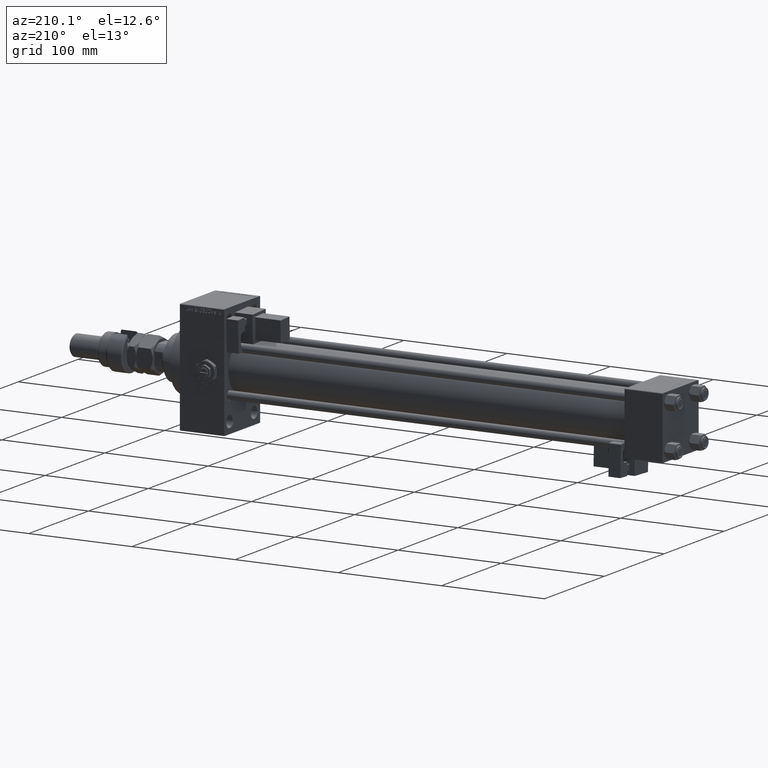
[diagram: clean part render]
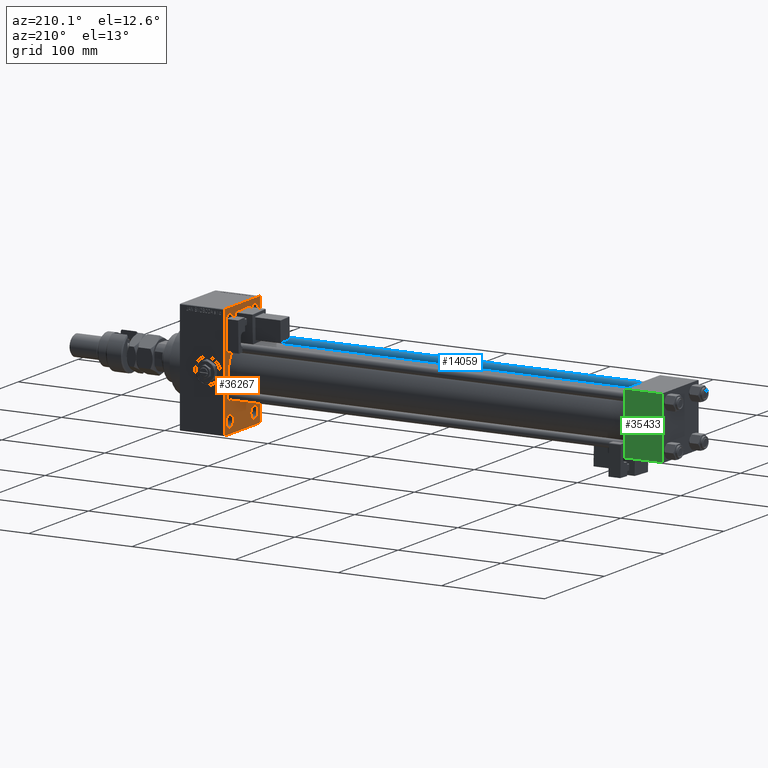
[diagram: same view with three faces highlighted in distinct colors, each labeled with its STEP entity id]
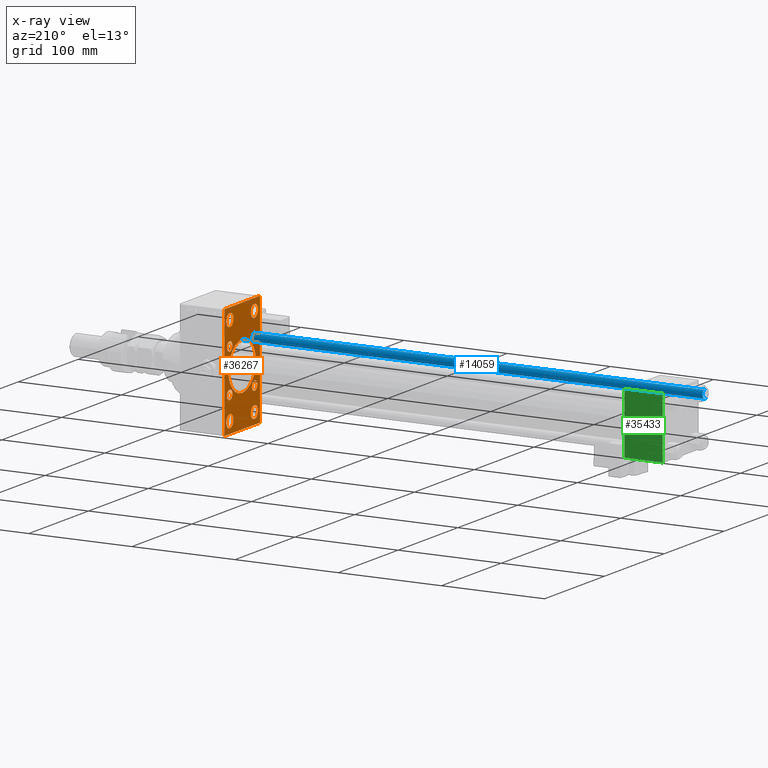
[diagram: x-ray of the same camera — body ghosted, the three highlighted faces saturated]
A machine part, auxiliary view with three faces highlighted in distinct colors.
The next image is the same camera in x-ray (body ghosted, the three faces saturated) — at least one of them is partly hidden behind the body in this view.
Their STEP definitions:

[orange] entity #36267 — the highlighted planar face has unit normal (-1, 0, 0).
#74 = EDGE_CURVE ( 'NONE', #5263, #49610, #17939, .T. ) ;
#223 = EDGE_CURVE ( 'NONE', #26755, #48672, #45046, .T. ) ;
#347 = CIRCLE ( 'NONE', #33502, 23.00000000000000000 ) ;
#788 = ORIENTED_EDGE ( 'NONE', *, *, #45162, .T. ) ;
#865 = CARTESIAN_POINT ( 'NONE',  ( 425.0000000000000000, 20.50000000000000000, 43.50000000000000000 ) ) ;
#1104 = DIRECTION ( 'NONE',  ( -0.000000000000000000, 0.000000000000000000, 1.000000000000000000 ) ) ;
#1119 = VERTEX_POINT ( 'NONE', #9525 ) ;
#1373 = PLANE ( 'NONE',  #25801 ) ;
#1623 = CARTESIAN_POINT ( 'NONE',  ( 425.0000000000000000, -20.84999999999999076, -16.34999999999999787 ) ) ;
#1714 = DIRECTION ( 'NONE',  ( 1.000000000000000000, -0.000000000000000000, 0.000000000000000000 ) ) ;
#2031 = CARTESIAN_POINT ( 'NONE',  ( 425.0000000000000000, 29.99999999999999645, -54.49999999999999289 ) ) ;
#2433 = CARTESIAN_POINT ( 'NONE',  ( 425.0000000000000000, 29.50000000000004974, 54.49999999999999289 ) ) ;
#2756 = ORIENTED_EDGE ( 'NONE', *, *, #20898, .T. ) ;
#2877 = ORIENTED_EDGE ( 'NONE', *, *, #3220, .T. ) ;
#3220 = EDGE_CURVE ( 'NONE', #3223, #41674, #43442, .T. ) ;
#3223 = VERTEX_POINT ( 'NONE', #9857 ) ;
#3252 = ORIENTED_EDGE ( 'NONE', *, *, #31828, .T. ) ;
#3344 = DIRECTION ( 'NONE',  ( 1.000000000000000000, -0.000000000000000000, 0.000000000000000000 ) ) ;
#3407 = AXIS2_PLACEMENT_3D ( 'NONE', #28477, #3344, #23568 ) ;
#3410 = CARTESIAN_POINT ( 'NONE',  ( 425.0000000000000000, -20.84999999999999076, 25.35000000000001208 ) ) ;
#3424 = DIRECTION ( 'NONE',  ( 1.000000000000000000, -0.000000000000000000, 0.000000000000000000 ) ) ;
#3541 = EDGE_CURVE ( 'NONE', #13199, #46855, #19952, .T. ) ;
#3666 = LINE ( 'NONE', #49332, #36600 ) ;
#3700 = CARTESIAN_POINT ( 'NONE',  ( 425.0000000000000000, 20.50000000000000000, -43.50000000000000000 ) ) ;
#3876 = VERTEX_POINT ( 'NONE', #30235 ) ;
#4008 = CIRCLE ( 'NONE', #16078, 23.00000000000000000 ) ;
#4312 = ORIENTED_EDGE ( 'NONE', *, *, #32452, .T. ) ;
#4397 = FACE_BOUND ( 'NONE', #32550, .T. ) ;
#4667 = CARTESIAN_POINT ( 'NONE',  ( 425.0000000000000000, 41.99999999999996447, -41.99999999999996447 ) ) ;
#4721 = CARTESIAN_POINT ( 'NONE',  ( 425.0000000000000000, 20.84999999999999787, -20.85000000000000142 ) ) ;
#4849 = CARTESIAN_POINT ( 'NONE',  ( 425.0000000000000000, -20.84999999999999076, -20.85000000000000497 ) ) ;
#5263 = VERTEX_POINT ( 'NONE', #51125 ) ;
#5336 = DIRECTION ( 'NONE',  ( 1.000000000000000000, 0.000000000000000000, 0.000000000000000000 ) ) ;
#6245 = CARTESIAN_POINT ( 'NONE',  ( 425.0000000000000000, -2.602085213965210642E-15, 0.000000000000000000 ) ) ;
#6497 = ORIENTED_EDGE ( 'NONE', *, *, #47106, .T. ) ;
#6633 = CARTESIAN_POINT ( 'NONE',  ( 425.0000000000000000, 20.84999999999999787, 20.85000000000000142 ) ) ;
#6778 = DIRECTION ( 'NONE',  ( 1.000000000000000000, -0.000000000000000000, 0.000000000000000000 ) ) ;
#7441 = VERTEX_POINT ( 'NONE', #19532 ) ;
#7737 = VERTEX_POINT ( 'NONE', #49221 ) ;
#9024 = CARTESIAN_POINT ( 'NONE',  ( 425.0000000000000000, 0.000000000000000000, 0.000000000000000000 ) ) ;
#9525 = CARTESIAN_POINT ( 'NONE',  ( 425.0000000000000000, -30.00000000000000000, -53.99999999999998579 ) ) ;
#9857 = CARTESIAN_POINT ( 'NONE',  ( 425.0000000000000000, 20.50000000000000000, 49.49999999999995026 ) ) ;
#9991 = EDGE_CURVE ( 'NONE', #53456, #1119, #3666, .T. ) ;
#10041 = DIRECTION ( 'NONE',  ( 0.000000000000000000, 0.000000000000000000, 1.000000000000000000 ) ) ;
#10232 = DIRECTION ( 'NONE',  ( 0.000000000000000000, 0.000000000000000000, -1.000000000000000000 ) ) ;
#10314 = DIRECTION ( 'NONE',  ( 0.000000000000000000, -0.7071067811864960584, 0.7071067811865990871 ) ) ;
#10648 = CARTESIAN_POINT ( 'NONE',  ( 425.0000000000000000, -20.50000000000000000, -49.49999999999995026 ) ) ;
#11386 = CIRCLE ( 'NONE', #49829, 4.500000000000007105 ) ;
#11639 = ORIENTED_EDGE ( 'NONE', *, *, #32584, .T. ) ;
#11796 = DIRECTION ( 'NONE',  ( 1.000000000000000000, -0.000000000000000000, 0.000000000000000000 ) ) ;
#11988 = DIRECTION ( 'NONE',  ( 0.000000000000000000, -1.000000000000000000, 1.156482317317871478E-16 ) ) ;
#12283 = DIRECTION ( 'NONE',  ( 0.000000000000000000, 0.000000000000000000, 1.000000000000000000 ) ) ;
#12314 = VECTOR ( 'NONE', #29716, 1000.000000000000000 ) ;
#12563 = CARTESIAN_POINT ( 'NONE',  ( 425.0000000000000000, 20.84999999999999787, -20.85000000000000142 ) ) ;
#12658 = DIRECTION ( 'NONE',  ( 0.000000000000000000, 0.000000000000000000, 1.000000000000000000 ) ) ;
#12876 = VECTOR ( 'NONE', #29238, 1000.000000000000000 ) ;
#13050 = CARTESIAN_POINT ( 'NONE',  ( 425.0000000000000000, 29.99999999999999645, 54.49999999999999289 ) ) ;
#13199 = VERTEX_POINT ( 'NONE', #2433 ) ;
#13547 = EDGE_CURVE ( 'NONE', #46855, #49600, #33841, .T. ) ;
#13813 = AXIS2_PLACEMENT_3D ( 'NONE', #47007, #46210, #38808 ) ;
#13891 = ORIENTED_EDGE ( 'NONE', *, *, #52232, .T. ) ;
#14309 = EDGE_CURVE ( 'NONE', #49065, #26975, #45505, .T. ) ;
#14829 = ORIENTED_EDGE ( 'NONE', *, *, #53511, .T. ) ;
#14951 = CARTESIAN_POINT ( 'NONE',  ( 425.0000000000000000, -20.84999999999999076, 20.85000000000000497 ) ) ;
#15711 = CARTESIAN_POINT ( 'NONE',  ( 425.0000000000000000, -20.50000000000000000, -43.50000000000000000 ) ) ;
#16015 = ORIENTED_EDGE ( 'NONE', *, *, #23651, .T. ) ;
#16078 = AXIS2_PLACEMENT_3D ( 'NONE', #22561, #5336, #10232 ) ;
#17251 = CARTESIAN_POINT ( 'NONE',  ( 425.0000000000000000, -20.50000000000000000, 37.50000000000004974 ) ) ;
#17334 = ORIENTED_EDGE ( 'NONE', *, *, #9991, .F. ) ;
#17801 = ORIENTED_EDGE ( 'NONE', *, *, #35228, .T. ) ;
#17939 = CIRCLE ( 'NONE', #48521, 4.500000000000007105 ) ;
#18038 = FACE_BOUND ( 'NONE', #35075, .T. ) ;
#18049 = ORIENTED_EDGE ( 'NONE', *, *, #74, .T. ) ;
#18237 = VERTEX_POINT ( 'NONE', #21570 ) ;
#18377 = DIRECTION ( 'NONE',  ( 0.000000000000000000, 0.000000000000000000, 1.000000000000000000 ) ) ;
#19037 = EDGE_LOOP ( 'NONE', ( #17801, #6497 ) ) ;
#19532 = CARTESIAN_POINT ( 'NONE',  ( 425.0000000000000000, -2.602085213965210642E-15, 23.00000000000000000 ) ) ;
#19698 = DIRECTION ( 'NONE',  ( 0.000000000000000000, 0.000000000000000000, 1.000000000000000000 ) ) ;
#19814 = VERTEX_POINT ( 'NONE', #44652 ) ;
#19818 = DIRECTION ( 'NONE',  ( 0.000000000000000000, 0.000000000000000000, 1.000000000000000000 ) ) ;
#19952 = LINE ( 'NONE', #33617, #12876 ) ;
#20724 = ORIENTED_EDGE ( 'NONE', *, *, #49367, .F. ) ;
#20898 = EDGE_CURVE ( 'NONE', #41674, #3223, #23787, .T. ) ;
#20924 = ORIENTED_EDGE ( 'NONE', *, *, #14309, .T. ) ;
#21075 = FACE_BOUND ( 'NONE', #47094, .T. ) ;
#21570 = CARTESIAN_POINT ( 'NONE',  ( 425.0000000000000000, 20.50000000000000000, -49.49999999999995026 ) ) ;
#22029 = ORIENTED_EDGE ( 'NONE', *, *, #45997, .T. ) ;
#22329 = AXIS2_PLACEMENT_3D ( 'NONE', #15711, #3424, #19818 ) ;
#22388 = DIRECTION ( 'NONE',  ( 1.000000000000000000, 0.000000000000000000, 0.000000000000000000 ) ) ;
#22561 = CARTESIAN_POINT ( 'NONE',  ( 425.0000000000000000, -2.602085213965210642E-15, 0.000000000000000000 ) ) ;
#22645 = CIRCLE ( 'NONE', #44497, 5.999999999999950262 ) ;
#22821 = VECTOR ( 'NONE', #10314, 1000.000000000000000 ) ;
#23024 = CARTESIAN_POINT ( 'NONE',  ( 425.0000000000000000, 20.84999999999999787, 20.85000000000000142 ) ) ;
#23568 = DIRECTION ( 'NONE',  ( 0.000000000000000000, 0.000000000000000000, 1.000000000000000000 ) ) ;
#23651 = EDGE_CURVE ( 'NONE', #52620, #3876, #11386, .T. ) ;
#23787 = CIRCLE ( 'NONE', #30759, 5.999999999999950262 ) ;
#24154 = DIRECTION ( 'NONE',  ( 0.000000000000000000, 0.000000000000000000, 1.000000000000000000 ) ) ;
#24677 = VERTEX_POINT ( 'NONE', #41007 ) ;
#24975 = CARTESIAN_POINT ( 'NONE',  ( 425.0000000000000000, -20.50000000000000000, 43.50000000000000000 ) ) ;
#25250 = DIRECTION ( 'NONE',  ( 0.000000000000000000, 0.000000000000000000, -1.000000000000000000 ) ) ;
#25446 = FACE_BOUND ( 'NONE', #19037, .T. ) ;
#25801 = AXIS2_PLACEMENT_3D ( 'NONE', #9024, #33648, #1104 ) ;
#25829 = VERTEX_POINT ( 'NONE', #44281 ) ;
#25948 = EDGE_LOOP ( 'NONE', ( #46510, #46494 ) ) ;
#25967 = FACE_BOUND ( 'NONE', #25948, .T. ) ;
#26316 = ORIENTED_EDGE ( 'NONE', *, *, #3541, .T. ) ;
#26574 = ORIENTED_EDGE ( 'NONE', *, *, #13547, .T. ) ;
#26653 = CARTESIAN_POINT ( 'NONE',  ( 425.0000000000000000, 20.50000000000000000, 37.50000000000004974 ) ) ;
#26755 = VERTEX_POINT ( 'NONE', #10648 ) ;
#26975 = VERTEX_POINT ( 'NONE', #30553 ) ;
#27106 = VERTEX_POINT ( 'NONE', #31360 ) ;
#27251 = CARTESIAN_POINT ( 'NONE',  ( 425.0000000000000000, 20.84999999999999787, -16.34999999999999432 ) ) ;
#27714 = ORIENTED_EDGE ( 'NONE', *, *, #40392, .T. ) ;
#27819 = AXIS2_PLACEMENT_3D ( 'NONE', #3700, #50444, #28829 ) ;
#28296 = CIRCLE ( 'NONE', #33539, 4.500000000000007105 ) ;
#28477 = CARTESIAN_POINT ( 'NONE',  ( 425.0000000000000000, 20.50000000000000000, -43.50000000000000000 ) ) ;
#28597 = DIRECTION ( 'NONE',  ( -0.000000000000000000, 0.7071067811865843211, 0.7071067811865107133 ) ) ;
#28829 = DIRECTION ( 'NONE',  ( 0.000000000000000000, 0.000000000000000000, 1.000000000000000000 ) ) ;
#29031 = CIRCLE ( 'NONE', #35153, 4.500000000000007105 ) ;
#29238 = DIRECTION ( 'NONE',  ( 0.000000000000000000, 0.7071067811865081598, -0.7071067811865868746 ) ) ;
#29716 = DIRECTION ( 'NONE',  ( 0.000000000000000000, 0.000000000000000000, -1.000000000000000000 ) ) ;
#29741 = EDGE_LOOP ( 'NONE', ( #13891, #788 ) ) ;
#30235 = CARTESIAN_POINT ( 'NONE',  ( 425.0000000000000000, -20.84999999999999076, -25.35000000000001208 ) ) ;
#30372 = DIRECTION ( 'NONE',  ( 1.000000000000000000, -0.000000000000000000, 0.000000000000000000 ) ) ;
#30553 = CARTESIAN_POINT ( 'NONE',  ( 425.0000000000000000, 20.84999999999999787, 16.34999999999999432 ) ) ;
#30759 = AXIS2_PLACEMENT_3D ( 'NONE', #32813, #49787, #19698 ) ;
#31360 = CARTESIAN_POINT ( 'NONE',  ( 425.0000000000000000, 29.49999999999993960, -54.49999999999999289 ) ) ;
#31828 = EDGE_CURVE ( 'NONE', #7441, #7737, #347, .T. ) ;
#32219 = VERTEX_POINT ( 'NONE', #43118 ) ;
#32256 = CARTESIAN_POINT ( 'NONE',  ( 425.0000000000000000, -20.50000000000000000, 43.50000000000000000 ) ) ;
#32452 = EDGE_CURVE ( 'NONE', #27106, #24677, #34574, .T. ) ;
#32550 = EDGE_LOOP ( 'NONE', ( #11639, #18049 ) ) ;
#32584 = EDGE_CURVE ( 'NONE', #49610, #5263, #28296, .T. ) ;
#32749 = CIRCLE ( 'NONE', #46719, 5.999999999999950262 ) ;
#32813 = CARTESIAN_POINT ( 'NONE',  ( 425.0000000000000000, 20.50000000000000000, 43.50000000000000000 ) ) ;
#33378 = DIRECTION ( 'NONE',  ( -0.000000000000000000, -0.7071067811865474617, -0.7071067811865474617 ) ) ;
#33440 = DIRECTION ( 'NONE',  ( 1.000000000000000000, -0.000000000000000000, 0.000000000000000000 ) ) ;
#33502 = AXIS2_PLACEMENT_3D ( 'NONE', #6245, #22388, #51907 ) ;
#33539 = AXIS2_PLACEMENT_3D ( 'NONE', #4721, #33440, #12658 ) ;
#33587 = LINE ( 'NONE', #50289, #38511 ) ;
#33617 = CARTESIAN_POINT ( 'NONE',  ( 425.0000000000000000, 42.00000000000166267, 41.99999999999699440 ) ) ;
#33648 = DIRECTION ( 'NONE',  ( -1.000000000000000000, 0.000000000000000000, -0.000000000000000000 ) ) ;
#33841 = LINE ( 'NONE', #13050, #12314 ) ;
#33914 = FACE_BOUND ( 'NONE', #29741, .T. ) ;
#34293 = CIRCLE ( 'NONE', #42151, 4.500000000000007105 ) ;
#34330 = ORIENTED_EDGE ( 'NONE', *, *, #50362, .T. ) ;
#34491 = DIRECTION ( 'NONE',  ( 0.000000000000000000, 0.000000000000000000, 1.000000000000000000 ) ) ;
#34574 = LINE ( 'NONE', #2031, #49247 ) ;
#34755 = DIRECTION ( 'NONE',  ( 1.000000000000000000, -0.000000000000000000, 0.000000000000000000 ) ) ;
#35075 = EDGE_LOOP ( 'NONE', ( #20924, #22029 ) ) ;
#35153 = AXIS2_PLACEMENT_3D ( 'NONE', #42432, #30372, #34491 ) ;
#35228 = EDGE_CURVE ( 'NONE', #25829, #42260, #32749, .T. ) ;
#35717 = CARTESIAN_POINT ( 'NONE',  ( 425.0000000000000000, -20.50000000000000000, -37.50000000000004974 ) ) ;
#36267 = ADVANCED_FACE ( 'NONE', ( #25446, #21075, #25967, #42926, #33914, #18038, #4397, #50867, #38823, #46483 ), #1373, .T. ) ;
#36600 = VECTOR ( 'NONE', #25250, 1000.000000000000000 ) ;
#36646 = DIRECTION ( 'NONE',  ( 0.000000000000000000, 0.000000000000000000, 1.000000000000000000 ) ) ;
#36910 = DIRECTION ( 'NONE',  ( 1.000000000000000000, -0.000000000000000000, 0.000000000000000000 ) ) ;
#37000 = EDGE_CURVE ( 'NONE', #7737, #7441, #4008, .T. ) ;
#38511 = VECTOR ( 'NONE', #11988, 1000.000000000000000 ) ;
#38808 = DIRECTION ( 'NONE',  ( 0.000000000000000000, 0.000000000000000000, 1.000000000000000000 ) ) ;
#38823 = FACE_BOUND ( 'NONE', #44686, .T. ) ;
#40392 = EDGE_CURVE ( 'NONE', #53456, #19814, #48860, .T. ) ;
#41007 = CARTESIAN_POINT ( 'NONE',  ( 425.0000000000000000, -29.50000000000005684, -54.50000000000000000 ) ) ;
#41057 = ORIENTED_EDGE ( 'NONE', *, *, #223, .T. ) ;
#41266 = CARTESIAN_POINT ( 'NONE',  ( 425.0000000000000000, 20.50000000000000000, -37.50000000000004974 ) ) ;
#41674 = VERTEX_POINT ( 'NONE', #26653 ) ;
#41732 = EDGE_LOOP ( 'NONE', ( #4312, #34330, #17334, #27714, #20724, #26316, #26574, #46289 ) ) ;
#41740 = VECTOR ( 'NONE', #33378, 1000.000000000000114 ) ;
#41782 = DIRECTION ( 'NONE',  ( 1.000000000000000000, -0.000000000000000000, 0.000000000000000000 ) ) ;
#42151 = AXIS2_PLACEMENT_3D ( 'NONE', #4849, #41782, #46671 ) ;
#42260 = VERTEX_POINT ( 'NONE', #17251 ) ;
#42432 = CARTESIAN_POINT ( 'NONE',  ( 425.0000000000000000, -20.84999999999999076, 20.85000000000000497 ) ) ;
#42776 = ORIENTED_EDGE ( 'NONE', *, *, #48233, .T. ) ;
#42926 = FACE_BOUND ( 'NONE', #52441, .T. ) ;
#43118 = CARTESIAN_POINT ( 'NONE',  ( 425.0000000000000000, -20.84999999999999076, 16.34999999999999787 ) ) ;
#43420 = DIRECTION ( 'NONE',  ( 1.000000000000000000, -0.000000000000000000, 0.000000000000000000 ) ) ;
#43442 = CIRCLE ( 'NONE', #44299, 5.999999999999950262 ) ;
#43733 = CIRCLE ( 'NONE', #13813, 5.999999999999950262 ) ;
#43832 = EDGE_CURVE ( 'NONE', #49600, #27106, #46484, .T. ) ;
#44281 = CARTESIAN_POINT ( 'NONE',  ( 425.0000000000000000, -20.50000000000000000, 49.49999999999995026 ) ) ;
#44299 = AXIS2_PLACEMENT_3D ( 'NONE', #865, #34755, #47599 ) ;
#44420 = CIRCLE ( 'NONE', #48805, 4.500000000000007105 ) ;
#44497 = AXIS2_PLACEMENT_3D ( 'NONE', #32256, #50055, #36646 ) ;
#44652 = CARTESIAN_POINT ( 'NONE',  ( 425.0000000000000000, -29.49999999999988987, 54.50000000000000000 ) ) ;
#44686 = EDGE_LOOP ( 'NONE', ( #3252, #51237 ) ) ;
#44982 = VERTEX_POINT ( 'NONE', #41266 ) ;
#45046 = CIRCLE ( 'NONE', #22329, 5.999999999999950262 ) ;
#45162 = EDGE_CURVE ( 'NONE', #32219, #45648, #52260, .T. ) ;
#45314 = EDGE_LOOP ( 'NONE', ( #16015, #14829 ) ) ;
#45505 = CIRCLE ( 'NONE', #47252, 4.500000000000007105 ) ;
#45648 = VERTEX_POINT ( 'NONE', #3410 ) ;
#45997 = EDGE_CURVE ( 'NONE', #26975, #49065, #44420, .T. ) ;
#46000 = CARTESIAN_POINT ( 'NONE',  ( 425.0000000000000000, 29.99999999999999645, 53.99999999999999289 ) ) ;
#46017 = DIRECTION ( 'NONE',  ( 1.000000000000000000, -0.000000000000000000, 0.000000000000000000 ) ) ;
#46031 = EDGE_CURVE ( 'NONE', #44982, #18237, #50564, .T. ) ;
#46140 = AXIS2_PLACEMENT_3D ( 'NONE', #14951, #43420, #10041 ) ;
#46210 = DIRECTION ( 'NONE',  ( 1.000000000000000000, -0.000000000000000000, 0.000000000000000000 ) ) ;
#46289 = ORIENTED_EDGE ( 'NONE', *, *, #43832, .T. ) ;
#46421 = EDGE_CURVE ( 'NONE', #18237, #44982, #51415, .T. ) ;
#46483 = FACE_OUTER_BOUND ( 'NONE', #41732, .T. ) ;
#46484 = LINE ( 'NONE', #4667, #41740 ) ;
#46494 = ORIENTED_EDGE ( 'NONE', *, *, #46421, .T. ) ;
#46510 = ORIENTED_EDGE ( 'NONE', *, *, #46031, .T. ) ;
#46671 = DIRECTION ( 'NONE',  ( 0.000000000000000000, 0.000000000000000000, 1.000000000000000000 ) ) ;
#46719 = AXIS2_PLACEMENT_3D ( 'NONE', #24975, #46017, #24154 ) ;
#46792 = VECTOR ( 'NONE', #28597, 1000.000000000000000 ) ;
#46855 = VERTEX_POINT ( 'NONE', #46000 ) ;
#47007 = CARTESIAN_POINT ( 'NONE',  ( 425.0000000000000000, -20.50000000000000000, -43.50000000000000000 ) ) ;
#47094 = EDGE_LOOP ( 'NONE', ( #42776, #41057 ) ) ;
#47106 = EDGE_CURVE ( 'NONE', #42260, #25829, #22645, .T. ) ;
#47252 = AXIS2_PLACEMENT_3D ( 'NONE', #23024, #1714, #18377 ) ;
#47518 = CARTESIAN_POINT ( 'NONE',  ( 425.0000000000000000, -42.00000000000216716, -41.99999999999604938 ) ) ;
#47599 = DIRECTION ( 'NONE',  ( 0.000000000000000000, 0.000000000000000000, 1.000000000000000000 ) ) ;
#47787 = LINE ( 'NONE', #47518, #22821 ) ;
#48233 = EDGE_CURVE ( 'NONE', #48672, #26755, #43733, .T. ) ;
#48521 = AXIS2_PLACEMENT_3D ( 'NONE', #12563, #36910, #12283 ) ;
#48672 = VERTEX_POINT ( 'NONE', #35717 ) ;
#48805 = AXIS2_PLACEMENT_3D ( 'NONE', #6633, #11796, #52830 ) ;
#48860 = LINE ( 'NONE', #49131, #46792 ) ;
#49065 = VERTEX_POINT ( 'NONE', #53951 ) ;
#49131 = CARTESIAN_POINT ( 'NONE',  ( 425.0000000000000000, -41.99999999999841549, 42.00000000000278533 ) ) ;
#49138 = CARTESIAN_POINT ( 'NONE',  ( 425.0000000000000000, 29.99999999999999645, -53.99999999999993605 ) ) ;
#49221 = CARTESIAN_POINT ( 'NONE',  ( 425.0000000000000000, 2.146024240737012665E-16, -23.00000000000000000 ) ) ;
#49247 = VECTOR ( 'NONE', #51262, 1000.000000000000000 ) ;
#49332 = CARTESIAN_POINT ( 'NONE',  ( 425.0000000000000000, -30.00000000000000000, 54.50000000000000000 ) ) ;
#49367 = EDGE_CURVE ( 'NONE', #13199, #19814, #33587, .T. ) ;
#49429 = CARTESIAN_POINT ( 'NONE',  ( 425.0000000000000000, -20.84999999999999076, -20.85000000000000497 ) ) ;
#49600 = VERTEX_POINT ( 'NONE', #49138 ) ;
#49610 = VERTEX_POINT ( 'NONE', #27251 ) ;
#49787 = DIRECTION ( 'NONE',  ( 1.000000000000000000, -0.000000000000000000, 0.000000000000000000 ) ) ;
#49829 = AXIS2_PLACEMENT_3D ( 'NONE', #49429, #6778, #52427 ) ;
#50055 = DIRECTION ( 'NONE',  ( 1.000000000000000000, -0.000000000000000000, 0.000000000000000000 ) ) ;
#50289 = CARTESIAN_POINT ( 'NONE',  ( 425.0000000000000000, 29.99999999999999645, 54.49999999999999289 ) ) ;
#50362 = EDGE_CURVE ( 'NONE', #24677, #1119, #47787, .T. ) ;
#50444 = DIRECTION ( 'NONE',  ( 1.000000000000000000, -0.000000000000000000, 0.000000000000000000 ) ) ;
#50564 = CIRCLE ( 'NONE', #3407, 5.999999999999950262 ) ;
#50867 = FACE_BOUND ( 'NONE', #45314, .T. ) ;
#51125 = CARTESIAN_POINT ( 'NONE',  ( 425.0000000000000000, 20.84999999999999787, -25.35000000000000853 ) ) ;
#51237 = ORIENTED_EDGE ( 'NONE', *, *, #37000, .T. ) ;
#51262 = DIRECTION ( 'NONE',  ( 0.000000000000000000, -1.000000000000000000, -1.156482317317871478E-16 ) ) ;
#51415 = CIRCLE ( 'NONE', #27819, 5.999999999999950262 ) ;
#51907 = DIRECTION ( 'NONE',  ( 0.000000000000000000, 0.000000000000000000, -1.000000000000000000 ) ) ;
#52232 = EDGE_CURVE ( 'NONE', #45648, #32219, #29031, .T. ) ;
#52260 = CIRCLE ( 'NONE', #46140, 4.500000000000007105 ) ;
#52427 = DIRECTION ( 'NONE',  ( 0.000000000000000000, 0.000000000000000000, 1.000000000000000000 ) ) ;
#52441 = EDGE_LOOP ( 'NONE', ( #2877, #2756 ) ) ;
#52620 = VERTEX_POINT ( 'NONE', #1623 ) ;
#52830 = DIRECTION ( 'NONE',  ( 0.000000000000000000, 0.000000000000000000, 1.000000000000000000 ) ) ;
#53456 = VERTEX_POINT ( 'NONE', #54075 ) ;
#53511 = EDGE_CURVE ( 'NONE', #3876, #52620, #34293, .T. ) ;
#53951 = CARTESIAN_POINT ( 'NONE',  ( 425.0000000000000000, 20.84999999999999787, 25.35000000000000853 ) ) ;
#54075 = CARTESIAN_POINT ( 'NONE',  ( 425.0000000000000000, -30.00000000000000000, 53.99999999999994316 ) ) ;

[blue] entity #14059 — the highlighted cylindrical surface (edge-blend (fillet) strip) has radius 4 mm, axis along (1, 0, 0).
#367 = ORIENTED_EDGE ( 'NONE', *, *, #17903, .F. ) ;
#667 = LINE ( 'NONE', #4753, #43776 ) ;
#925 = DIRECTION ( 'NONE',  ( -0.000000000000000000, -0.000000000000000000, -1.000000000000000000 ) ) ;
#3391 = CARTESIAN_POINT ( 'NONE',  ( 0.000000000000000000, 0.000000000000000000, 452.0000000000000000 ) ) ;
#3582 = AXIS2_PLACEMENT_3D ( 'NONE', #3391, #20051, #28797 ) ;
#3667 = CYLINDRICAL_SURFACE ( 'NONE', #3582, 4.000000000000000000 ) ;
#4753 = CARTESIAN_POINT ( 'NONE',  ( 4.000000000000000000, 4.898587196589412829E-16, 452.0000000000000000 ) ) ;
#5639 = VECTOR ( 'NONE', #31083, 1000.000000000000000 ) ;
#7817 = CARTESIAN_POINT ( 'NONE',  ( -4.000000000000000000, 0.000000000000000000, 451.5000000000000000 ) ) ;
#10247 = CARTESIAN_POINT ( 'NONE',  ( 0.000000000000000000, 0.000000000000000000, 451.5000000000000000 ) ) ;
#10967 = CIRCLE ( 'NONE', #44038, 4.000000000000000000 ) ;
#11949 = VERTEX_POINT ( 'NONE', #30919 ) ;
#13437 = CARTESIAN_POINT ( 'NONE',  ( 4.000000000000000000, 4.898587196589412829E-16, 451.5000000000000000 ) ) ;
#14059 = ADVANCED_FACE ( 'NONE', ( #40840 ), #3667, .T. ) ;
#16717 = AXIS2_PLACEMENT_3D ( 'NONE', #10247, #43620, #26925 ) ;
#17903 = EDGE_CURVE ( 'NONE', #52944, #11949, #667, .T. ) ;
#20051 = DIRECTION ( 'NONE',  ( -0.000000000000000000, -0.000000000000000000, -1.000000000000000000 ) ) ;
#21317 = VERTEX_POINT ( 'NONE', #7817 ) ;
#25521 = EDGE_LOOP ( 'NONE', ( #367, #43748, #26999, #31817 ) ) ;
#26925 = DIRECTION ( 'NONE',  ( 1.000000000000000000, 0.000000000000000000, 0.000000000000000000 ) ) ;
#26999 = ORIENTED_EDGE ( 'NONE', *, *, #34303, .T. ) ;
#27454 = EDGE_CURVE ( 'NONE', #52944, #21317, #28934, .T. ) ;
#28797 = DIRECTION ( 'NONE',  ( -1.000000000000000000, 0.000000000000000000, 0.000000000000000000 ) ) ;
#28934 = CIRCLE ( 'NONE', #16717, 4.000000000000000000 ) ;
#30919 = CARTESIAN_POINT ( 'NONE',  ( 4.000000000000000000, 4.898587196589412829E-16, 0.5000000000000004441 ) ) ;
#31083 = DIRECTION ( 'NONE',  ( -0.000000000000000000, -0.000000000000000000, -1.000000000000000000 ) ) ;
#31817 = ORIENTED_EDGE ( 'NONE', *, *, #36832, .T. ) ;
#31889 = DIRECTION ( 'NONE',  ( -0.000000000000000000, -0.000000000000000000, 1.000000000000000000 ) ) ;
#32236 = CARTESIAN_POINT ( 'NONE',  ( -4.000000000000000000, 0.000000000000000000, 0.5000000000000004441 ) ) ;
#32425 = DIRECTION ( 'NONE',  ( 1.000000000000000000, 0.000000000000000000, 0.000000000000000000 ) ) ;
#32979 = CARTESIAN_POINT ( 'NONE',  ( 0.000000000000000000, 0.000000000000000000, 0.5000000000000004441 ) ) ;
#34303 = EDGE_CURVE ( 'NONE', #21317, #50155, #35467, .T. ) ;
#35467 = LINE ( 'NONE', #51887, #5639 ) ;
#36832 = EDGE_CURVE ( 'NONE', #50155, #11949, #10967, .T. ) ;
#40840 = FACE_OUTER_BOUND ( 'NONE', #25521, .T. ) ;
#43620 = DIRECTION ( 'NONE',  ( 0.000000000000000000, 0.000000000000000000, -1.000000000000000000 ) ) ;
#43748 = ORIENTED_EDGE ( 'NONE', *, *, #27454, .T. ) ;
#43776 = VECTOR ( 'NONE', #925, 1000.000000000000000 ) ;
#44038 = AXIS2_PLACEMENT_3D ( 'NONE', #32979, #31889, #32425 ) ;
#50155 = VERTEX_POINT ( 'NONE', #32236 ) ;
#51887 = CARTESIAN_POINT ( 'NONE',  ( -4.000000000000000000, 0.000000000000000000, 452.0000000000000000 ) ) ;
#52944 = VERTEX_POINT ( 'NONE', #13437 ) ;

[green] entity #35433 — the highlighted planar face has unit normal (0, 1, 0).
#562 = DIRECTION ( 'NONE',  ( 0.000000000000000000, 0.000000000000000000, -1.000000000000000000 ) ) ;
#2226 = DIRECTION ( 'NONE',  ( -0.000000000000000000, 1.000000000000000000, 0.000000000000000000 ) ) ;
#2492 = PLANE ( 'NONE',  #38885 ) ;
#4578 = VERTEX_POINT ( 'NONE', #29444 ) ;
#4730 = EDGE_CURVE ( 'NONE', #29760, #44056, #42039, .T. ) ;
#5070 = VECTOR ( 'NONE', #17675, 1000.000000000000000 ) ;
#5139 = DIRECTION ( 'NONE',  ( 0.000000000000000000, 0.000000000000000000, -1.000000000000000000 ) ) ;
#5707 = EDGE_LOOP ( 'NONE', ( #13823, #50790, #34850, #45574 ) ) ;
#6071 = CARTESIAN_POINT ( 'NONE',  ( 37.00000000000000000, 29.99999999999999289, 29.50000000000000000 ) ) ;
#6874 = FACE_OUTER_BOUND ( 'NONE', #5707, .T. ) ;
#7238 = EDGE_CURVE ( 'NONE', #4578, #12888, #45298, .T. ) ;
#11142 = VECTOR ( 'NONE', #20128, 1000.000000000000000 ) ;
#12888 = VERTEX_POINT ( 'NONE', #6071 ) ;
#13298 = CARTESIAN_POINT ( 'NONE',  ( 37.00000000000000000, 29.99999999999999289, -29.50000000000000000 ) ) ;
#13823 = ORIENTED_EDGE ( 'NONE', *, *, #48207, .T. ) ;
#17675 = DIRECTION ( 'NONE',  ( -1.000000000000000000, 0.000000000000000000, 0.000000000000000000 ) ) ;
#18357 = CARTESIAN_POINT ( 'NONE',  ( 37.00000000000000000, 29.99999999999999289, 30.00000000000000000 ) ) ;
#20128 = DIRECTION ( 'NONE',  ( 1.000000000000000000, 0.000000000000000000, 0.000000000000000000 ) ) ;
#23539 = DIRECTION ( 'NONE',  ( 0.000000000000000000, -0.000000000000000000, 1.000000000000000000 ) ) ;
#24307 = CARTESIAN_POINT ( 'NONE',  ( 0.000000000000000000, 29.99999999999999289, -29.50000000000000000 ) ) ;
#25910 = LINE ( 'NONE', #34113, #41999 ) ;
#29444 = CARTESIAN_POINT ( 'NONE',  ( 0.000000000000000000, 29.99999999999999289, 29.50000000000000000 ) ) ;
#29760 = VERTEX_POINT ( 'NONE', #35800 ) ;
#30046 = CARTESIAN_POINT ( 'NONE',  ( 37.00000000000000000, 29.99999999999999289, 30.00000000000000000 ) ) ;
#34113 = CARTESIAN_POINT ( 'NONE',  ( 0.000000000000000000, 29.99999999999999289, 30.00000000000000000 ) ) ;
#34850 = ORIENTED_EDGE ( 'NONE', *, *, #49471, .F. ) ;
#35433 = ADVANCED_FACE ( 'NONE', ( #6874 ), #2492, .T. ) ;
#35800 = CARTESIAN_POINT ( 'NONE',  ( 37.00000000000000000, 29.99999999999999289, -29.50000000000000000 ) ) ;
#36788 = VECTOR ( 'NONE', #562, 1000.000000000000000 ) ;
#38885 = AXIS2_PLACEMENT_3D ( 'NONE', #18357, #2226, #23539 ) ;
#41999 = VECTOR ( 'NONE', #5139, 1000.000000000000000 ) ;
#42039 = LINE ( 'NONE', #13298, #5070 ) ;
#44056 = VERTEX_POINT ( 'NONE', #24307 ) ;
#44759 = CARTESIAN_POINT ( 'NONE',  ( 37.00000000000000000, 29.99999999999999289, 29.50000000000000000 ) ) ;
#45298 = LINE ( 'NONE', #44759, #11142 ) ;
#45574 = ORIENTED_EDGE ( 'NONE', *, *, #7238, .T. ) ;
#48207 = EDGE_CURVE ( 'NONE', #12888, #29760, #50852, .T. ) ;
#49471 = EDGE_CURVE ( 'NONE', #4578, #44056, #25910, .T. ) ;
#50790 = ORIENTED_EDGE ( 'NONE', *, *, #4730, .T. ) ;
#50852 = LINE ( 'NONE', #30046, #36788 ) ;